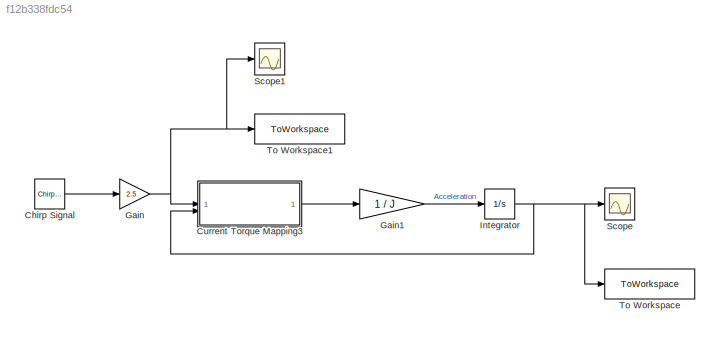
MODEL slx_f12b338fdc54
KIND model
CONFIG AbsTol = auto
CONFIG EnableMultiTasking = off
CONFIG FixedStep = 0.03
CONFIG MaxStep = auto
CONFIG MinStep = auto
CONFIG RelTol = 1e-3
CONFIG SampleTimeConstraint = Unconstrained
CONFIG SolverName = FixedStepAuto
CONFIG StartTime = 0.0
CONFIG StopTime = 120
BLOCK [Reference] Chirp Signal  REF=simulink/Sources/Chirp Signal
  SourceBlock = simulink/Sources/Chirp Signal
  SourceType = chirp
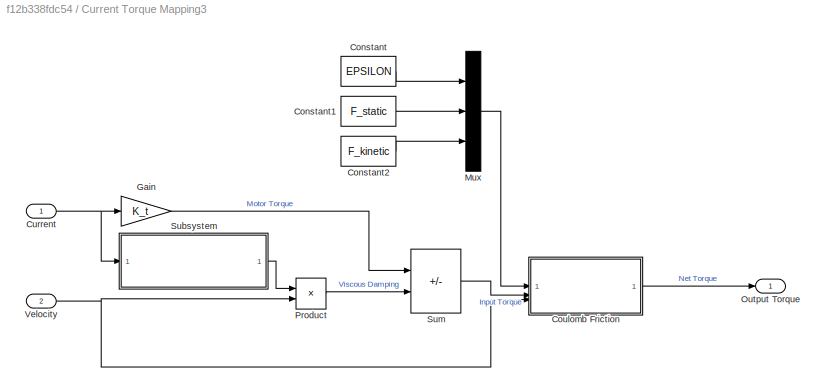
BLOCK [SubSystem] Current Torque Mapping3
BLOCK [Constant] Current Torque Mapping3/Constant
  Value = EPSILON
BLOCK [Constant] Current Torque Mapping3/Constant1
  Value = F_static
BLOCK [Constant] Current Torque Mapping3/Constant2
  Value = F_kinetic
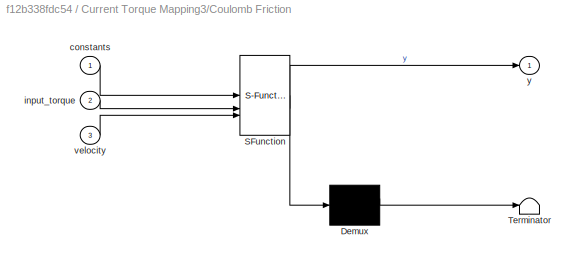
BLOCK [SubSystem] Current Torque Mapping3/Coulomb Friction
  ErrorFcn = Stateflow.Translate.translate
  LibrarySourceBlock = simulink/User-Defined\nFunctions/MATLAB Function
  PermitHierarchicalResolution = ExplicitOnly
  SFBlockType = MATLAB Function
  TreatAsAtomicUnit = on
BLOCK [Demux] Current Torque Mapping3/Coulomb Friction/ Demux 
  Outputs = 1
BLOCK [S-Function] Current Torque Mapping3/Coulomb Friction/ SFunction 
  EnableBusSupport = on
  FunctionName = sf_sfun
  PortCounts = [3 2]
  SFcnIsStateOwnerBlock = off
  SFunctionDeploymentMode = off
  Tag = Stateflow S-Function 1
BLOCK [Terminator] Current Torque Mapping3/Coulomb Friction/ Terminator 
BLOCK [Inport] Current Torque Mapping3/Coulomb Friction/constants
BLOCK [Inport] Current Torque Mapping3/Coulomb Friction/input_torque
  Port = 2
BLOCK [Inport] Current Torque Mapping3/Coulomb Friction/velocity
  Port = 3
BLOCK [Outport] Current Torque Mapping3/Coulomb Friction/y
BLOCK [Inport] Current Torque Mapping3/Current
BLOCK [Gain] Current Torque Mapping3/Gain
  Gain = K_t
BLOCK [Mux] Current Torque Mapping3/Mux
  DisplayOption = bar
  Inputs = 3
BLOCK [Outport] Current Torque Mapping3/Output Torque
BLOCK [Product] Current Torque Mapping3/Product
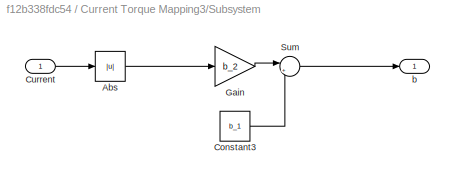
BLOCK [SubSystem] Current Torque Mapping3/Subsystem
BLOCK [Abs] Current Torque Mapping3/Subsystem/Abs
  SaturateOnIntegerOverflow = off
BLOCK [Constant] Current Torque Mapping3/Subsystem/Constant3
  Value = b_1
BLOCK [Inport] Current Torque Mapping3/Subsystem/Current
BLOCK [Gain] Current Torque Mapping3/Subsystem/Gain
  Gain = b_2
BLOCK [Sum] Current Torque Mapping3/Subsystem/Sum
  Inputs = |++
BLOCK [Outport] Current Torque Mapping3/Subsystem/b
BLOCK [Sum] Current Torque Mapping3/Sum
  IconShape = rectangular
  Inputs = +-
BLOCK [Inport] Current Torque Mapping3/Velocity
  Port = 2
BLOCK [Gain] Gain
  Gain = 2.5
BLOCK [Gain] Gain1
  Gain = 1 / J
BLOCK [Integrator] Integrator
BLOCK [Scope] Scope
  Floating = off
  NumInputPorts = 1
  ScopeSpecificationString = Simulink.scopes.TimeScopeBlockCfg('CurrentConfiguration', extmgr.ConfigurationSet(extmgr.Configuration('Core','General UI',true),extmgr.Configuration('Core','Source UI',true),extmgr.Configuration('Sources','WiredSimulink',true),extmgr.Configuration('Visuals','Time Domain',true,'SerializedDisplays',{struct('MinYLimReal','-1.10259','MaxYLimReal','1.41264','YLabelReal','','MinYLimMag','0.00000','MaxY...<+1330ch>
BLOCK [Scope] Scope1
  Floating = off
  NumInputPorts = 1
  ScopeSpecificationString = Simulink.scopes.TimeScopeBlockCfg('CurrentConfiguration', extmgr.ConfigurationSet(extmgr.Configuration('Core','General UI',true),extmgr.Configuration('Core','Source UI',true),extmgr.Configuration('Sources','WiredSimulink',true,'DataLoggingVariableName','ScopeData1'),extmgr.Configuration('Visuals','Time Domain',true,'SerializedDisplays',{struct('MinYLimReal','-3.125','MaxYLimReal','3.125','YLabelRe...<+1407ch>
BLOCK [ToWorkspace] To Workspace
  FixptAsFi = on
  MaxDataPoints = inf
  SampleTime = -1
  SaveFormat = Timeseries
  VariableName = velocity
BLOCK [ToWorkspace] To Workspace1
  FixptAsFi = on
  MaxDataPoints = inf
  SampleTime = -1
  SaveFormat = Timeseries
  VariableName = current
LINE Chirp Signal:1 -> Gain:1
LINE Current Torque Mapping3/Constant1:1 -> Current Torque Mapping3/Mux:2
LINE Current Torque Mapping3/Constant2:1 -> Current Torque Mapping3/Mux:3
LINE Current Torque Mapping3/Constant:1 -> Current Torque Mapping3/Mux:1
LINE Current Torque Mapping3/Coulomb Friction:1 -> Current Torque Mapping3/Output Torque:1
NET Current Torque Mapping3/Current:1 -> Current Torque Mapping3/Gain:1, Current Torque Mapping3/Subsystem:1
LINE Current Torque Mapping3/Gain:1 -> Current Torque Mapping3/Sum:1
LINE Current Torque Mapping3/Mux:1 -> Current Torque Mapping3/Coulomb Friction:1
LINE Current Torque Mapping3/Product:1 -> Current Torque Mapping3/Sum:2
LINE Current Torque Mapping3/Subsystem/Abs:1 -> Current Torque Mapping3/Subsystem/Gain:1
LINE Current Torque Mapping3/Subsystem/Constant3:1 -> Current Torque Mapping3/Subsystem/Sum:2
LINE Current Torque Mapping3/Subsystem/Current:1 -> Current Torque Mapping3/Subsystem/Abs:1
LINE Current Torque Mapping3/Subsystem/Gain:1 -> Current Torque Mapping3/Subsystem/Sum:1
LINE Current Torque Mapping3/Subsystem/Sum:1 -> Current Torque Mapping3/Subsystem/b:1
LINE Current Torque Mapping3/Subsystem:1 -> Current Torque Mapping3/Product:1
LINE Current Torque Mapping3/Sum:1 -> Current Torque Mapping3/Coulomb Friction:2
NET Current Torque Mapping3/Velocity:1 -> Current Torque Mapping3/Coulomb Friction:3, Current Torque Mapping3/Product:2
LINE Current Torque Mapping3:1 -> Gain1:1
LINE Gain1:1 -> Integrator:1
NET Gain:1 -> Current Torque Mapping3:1, Scope1:1, To Workspace1:1
NET Integrator:1 -> Current Torque Mapping3:2, Scope:1, To Workspace:1
note: NET lines group one-source signal fan-out (src -> all destinations, sorted); 1:1 wires keep LINE
CHART Current Torque Mapping3/Coulomb Friction states=1 transitions=1
  STATE_LABEL 'eML_blk_kernel()'
  STATE_LABEL 'SCRIPT:\nfunction y = fcn(constants, input_torque, velocity)\n    EPSILON = constants(1);\n    F_stat = constants(2);\n    F_c = constants(3);\n\n\n    if abs(velocity) < EPSILON % no motion\n        if abs(input_torque) < abs(F_stat) % insufficient torque\n            y = 0;\n            return\n        end\n\n        % reduce torque by static friction\n        static_friction = -1 * sign(input_torque) * F_sta...<+210ch>'
CHART  states=0 transitions=0
